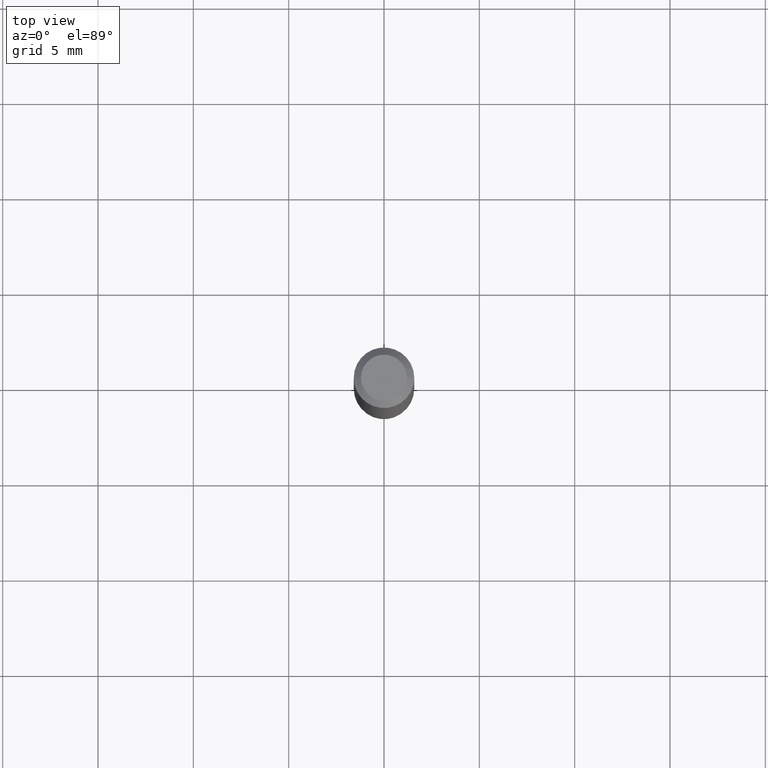
[diagram: clean part render]
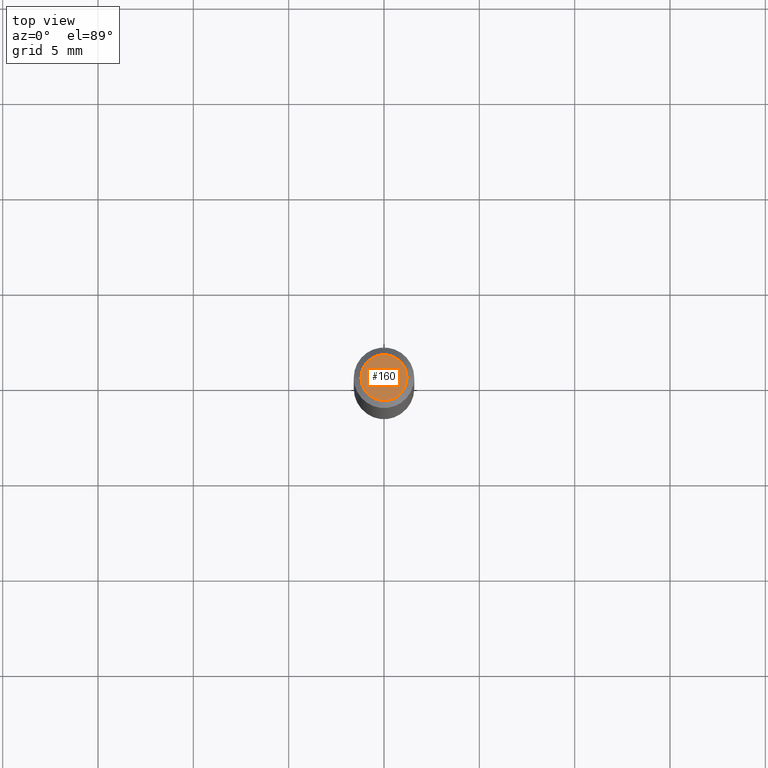
[diagram: same view with one face highlighted and labeled with its STEP entity id]
A machine part, top view. The second image highlights one B-rep face of the part: STEP entity #160.
In plain terms, the highlighted planar face has unit normal (0, -0, -1).
Its self-contained STEP definition (entity closure, byte-faithful):
#50 = AXIS2_PLACEMENT_3D ( 'NONE', #128, #287, #450 ) ;
#86 = EDGE_LOOP ( 'NONE', ( #354, #291 ) ) ;
#104 = EDGE_CURVE ( 'NONE', #137, #510, #365, .T. ) ;
#123 = CARTESIAN_POINT ( 'NONE',  ( -0.04750000000000000749, 3.578768372314221353E-16, 2.731847993664239060E-16 ) ) ;
#128 = CARTESIAN_POINT ( 'NONE',  ( 3.316907271900976589E-16, 0.04750000000000000749, -2.925296391183627249E-17 ) ) ;
#136 = CARTESIAN_POINT ( 'NONE',  ( -6.680649051745406845E-45, 9.538196290434862081E-31, 2.731847993664263218E-16 ) ) ;
#137 = VERTEX_POINT ( 'NONE', #255 ) ;
#160 = ADVANCED_FACE ( 'NONE', ( #203 ), #364, .F. ) ;
#173 = DIRECTION ( 'NONE',  ( -2.445468806185136597E-29, 3.491481338843145583E-15, 1.000000000000000000 ) ) ;
#203 = FACE_OUTER_BOUND ( 'NONE', #86, .T. ) ;
#217 = DIRECTION ( 'NONE',  ( 1.000000000000000000, -6.982962677686266711E-15, 4.852736867747365086E-29 ) ) ;
#247 = EDGE_CURVE ( 'NONE', #510, #137, #509, .T. ) ;
#255 = CARTESIAN_POINT ( 'NONE',  ( 0.04750000000000000749, -4.035134999187568762E-16, 2.731847993664288856E-16 ) ) ;
#275 = AXIS2_PLACEMENT_3D ( 'NONE', #136, #423, #217 ) ;
#287 = DIRECTION ( 'NONE',  ( 2.438088387897960049E-29, -3.491481338843145188E-15, -1.000000000000000000 ) ) ;
#291 = ORIENTED_EDGE ( 'NONE', *, *, #104, .T. ) ;
#334 = AXIS2_PLACEMENT_3D ( 'NONE', #494, #173, #335 ) ;
#335 = DIRECTION ( 'NONE',  ( 1.000000000000000000, -6.982962677686266711E-15, 4.852736867747365086E-29 ) ) ;
#354 = ORIENTED_EDGE ( 'NONE', *, *, #247, .T. ) ;
#364 = PLANE ( 'NONE',  #50 ) ;
#365 = CIRCLE ( 'NONE', #334, 0.04750000000000000749 ) ;
#423 = DIRECTION ( 'NONE',  ( -2.445468806185136597E-29, 3.491481338843145583E-15, 1.000000000000000000 ) ) ;
#450 = DIRECTION ( 'NONE',  ( -1.000000000000000000, 6.982962677686265922E-15, -4.876176775795935793E-29 ) ) ;
#494 = CARTESIAN_POINT ( 'NONE',  ( -6.680649051745406845E-45, 9.538196290434862081E-31, 2.731847993664263218E-16 ) ) ;
#509 = CIRCLE ( 'NONE', #275, 0.04750000000000000749 ) ;
#510 = VERTEX_POINT ( 'NONE', #123 ) ;